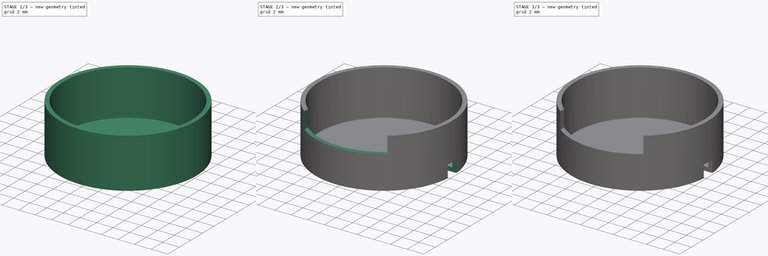
[diagram: build sequence overview — one tinted view per stage of 3, left to right]
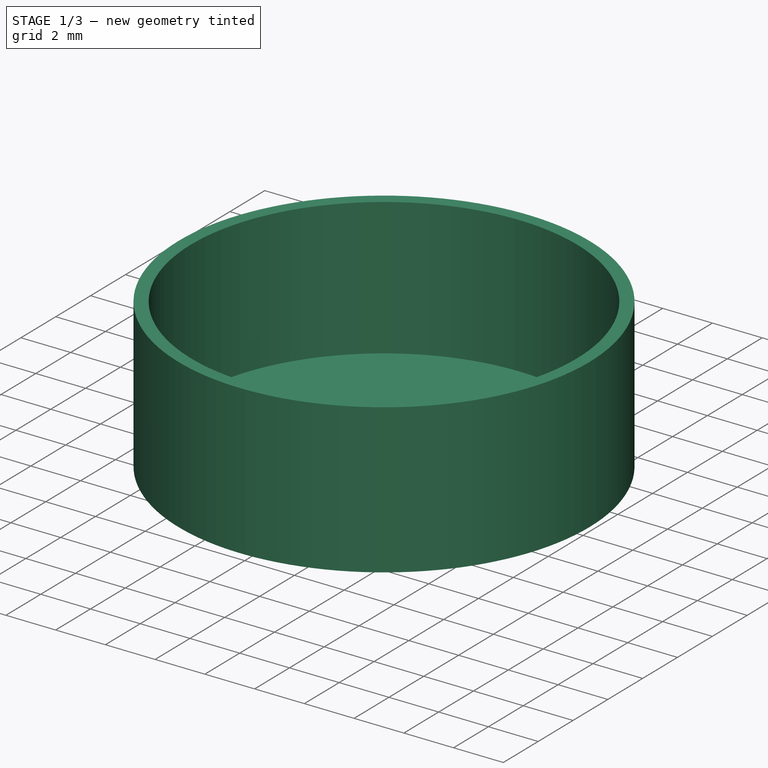
[diagram: stage 1 of 3 — iso view after this stage's code; geometry added in this stage tinted green]
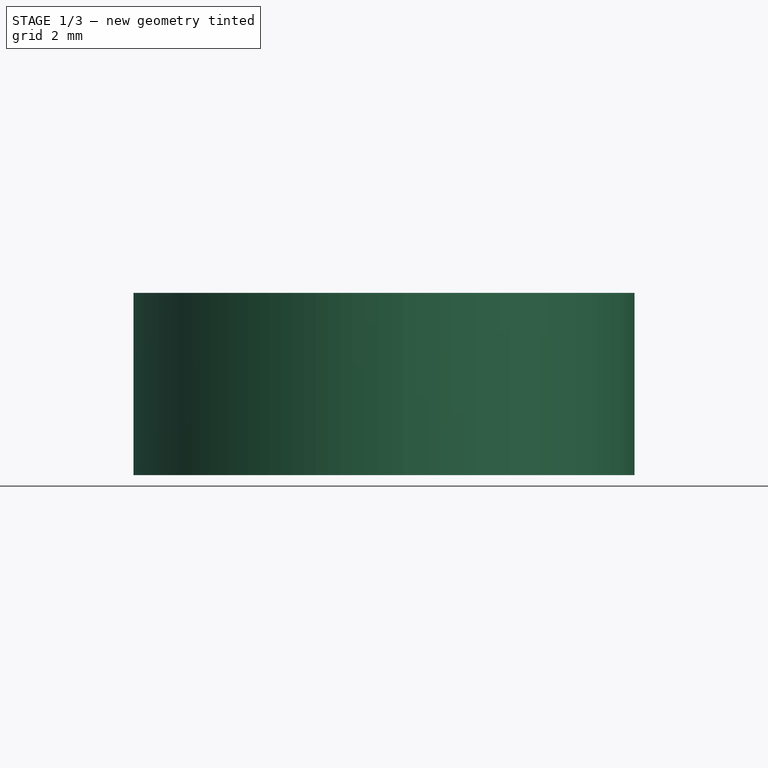
[diagram: stage 1 of 3 — front view after this stage's code; geometry added in this stage tinted green]
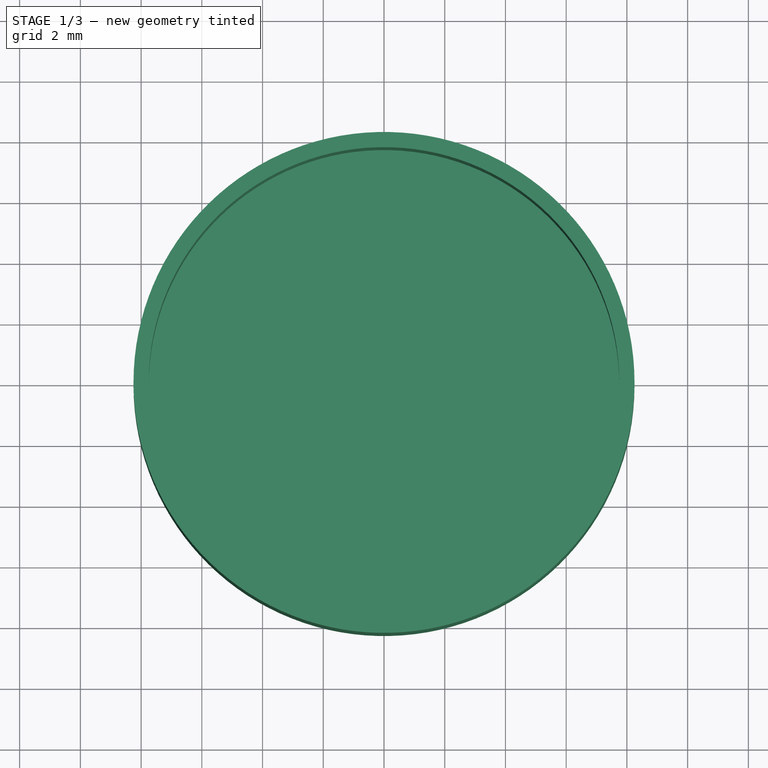
[diagram: stage 1 of 3 — top view after this stage's code; geometry added in this stage tinted green]
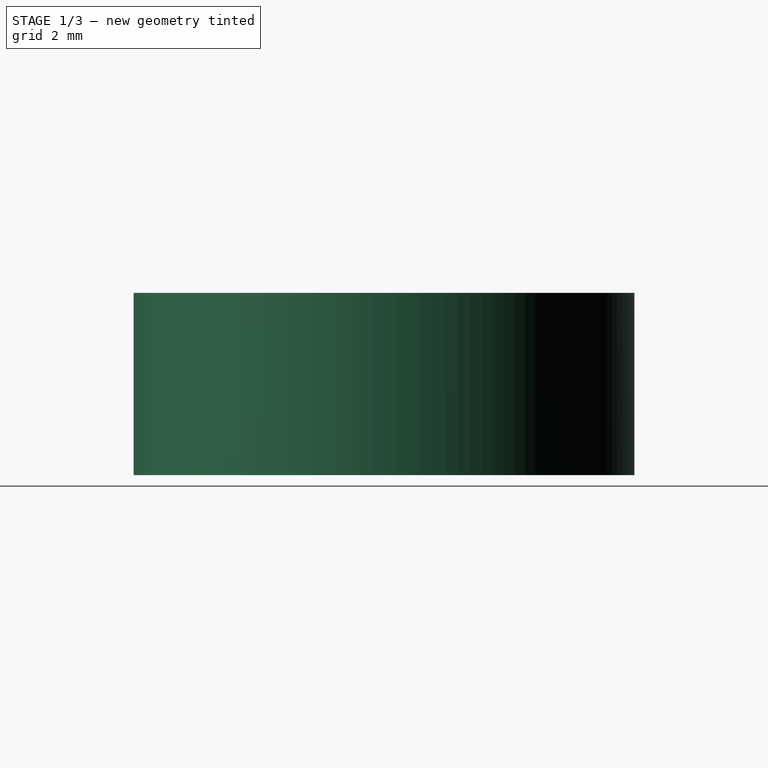
[diagram: stage 1 of 3 — right view after this stage's code; geometry added in this stage tinted green]
FCSTD DOCUMENT  (FreeCAD 0.19R16699 (Git))
Label: RV16AF Series
License: All rights reserved
LicenseURL: http://en.wikipedia.org/wiki/All_rights_reserved
objects: Sketcher::SketchObject×8, PartDesign::Plane×4, PartDesign::ShapeBinder×3, PartDesign::Pad×3, PartDesign::Pocket×2, Image::ImagePlane×1, PartDesign::Thickness×1, PartDesign::Body×1
note: 27 computed .brp shape members not serialized (recipe doc carries the construction recipe); baked Part::Feature solids carry a one-line shape summary decoded from their .brp

FEATURE [Image::ImagePlane] ImagePlane
  Placement = pos=(2.5,-19,0) rot=(0,0,1;0rad)
  XSize = 115
  YSize = 136
FEATURE [Sketcher::SketchObject] Sketch  label="MasterSketch_Housing_XY"
  expr: Constraints[32] = MasterSketch_Housing_XY.Constraints.radius
  expr: Constraints[31] = MasterSketch_Housing_YZ.Constraints.thickness
  expr: Constraints[21] = MasterSketch_Housing_YZ.Constraints.minicutout
  expr: Constraints[19] = MasterSketch_Housing_YZ.Constraints.minicutout
  sketch-geometry (13):
    g0: Circle CenterX=0 CenterY=0 CenterZ=0 NormalX=0 NormalY=0 NormalZ=1 AngleXU=0 Radius=8.25
    g1: LineSegment StartX=-5 StartY=0 StartZ=0 EndX=5 EndY=0 EndZ=0
    g2: LineSegment StartX=5 StartY=0 StartZ=0 EndX=5 EndY=-9.44646 EndZ=0
    g3: LineSegment StartX=5 StartY=-9.44646 StartZ=0 EndX=-5 EndY=-9.44646 EndZ=0
    g4: LineSegment StartX=-5 StartY=-9.44646 StartZ=0 EndX=-5 EndY=0 EndZ=0
    g5: LineSegment StartX=6.75 StartY=0.75 StartZ=0 EndX=8.25 EndY=0.75 EndZ=0
    g6: LineSegment StartX=8.25 StartY=0.75 StartZ=0 EndX=8.25 EndY=-0.75 EndZ=0
    g7: LineSegment StartX=8.25 StartY=-0.75 StartZ=0 EndX=6.75 EndY=-0.75 EndZ=0
    g8: LineSegment StartX=6.75 StartY=-0.75 StartZ=0 EndX=6.75 EndY=0.75 EndZ=0
    g9: LineSegment StartX=6.75 StartY=0.75 StartZ=0 EndX=6.25 EndY=0.75 EndZ=0
    g10: LineSegment StartX=6.25 StartY=0.75 StartZ=0 EndX=6.25 EndY=-0.75 EndZ=0
    g11: LineSegment StartX=6.25 StartY=-0.75 StartZ=0 EndX=6.75 EndY=-0.75 EndZ=0
    g12: LineSegment StartX=6.75 StartY=-0.75 StartZ=0 EndX=6.75 EndY=0.75 EndZ=0
  constraints (33):
    c: Coincident(g0,g-1)
    c: Radius(g0) = 8.25  'radius'
    c: Coincident(g1,g2)
    c: Coincident(g2,g3)
    c: Coincident(g3,g4)
    c: Coincident(g4,g1)
    c: Horizontal(g3)
    c: Vertical(g2)
    c: Vertical(g4)
    c: PointOnObject(g1,g-1)
    c: Symmetric(g1,g1,g-2)
    c: DistanceX(g3,g3) = 10  'cutoutwidth'
    c: Coincident(g5,g6)
    c: Coincident(g6,g7)
    c: Coincident(g7,g8)
    c: Coincident(g8,g5)
    c: Horizontal(g5)
    c: Horizontal(g7)
    c: Vertical(g8)
    c: DistanceX(g5,g5) = 1.5
    c: Symmetric(g5,g6,g-1)
    c: DistanceY(g6,g6) = 1.5
    c: Coincident(g9,g10)
    c: Coincident(g10,g11)
    c: Coincident(g11,g12)
    c: Coincident(g12,g9)
    c: Horizontal(g9)
    c: Horizontal(g11)
    c: Vertical(g10)
    c: Coincident(g9,g5)
    c: Coincident(g11,g7)
    c: DistanceX(g9,g9) = 0.5
    c: DistanceX(g0,g5) = 8.25
FEATURE [Sketcher::SketchObject] Sketch001  label="MasterSketch_Housing_XZ"
  Placement = pos=(0,0,0) rot=(1,0,0;1.5708rad)
  expr: Constraints[20] = MasterSketch_Housing_XY.Constraints.cutoutwidth
  expr: Constraints[8] = MasterSketch_Housing_XY.Constraints.radius * 2
  sketch-geometry (8):
    g0: LineSegment StartX=-8.25 StartY=0 StartZ=0 EndX=8.25 EndY=0 EndZ=0
    g1: LineSegment StartX=8.25 StartY=0 StartZ=0 EndX=8.25 EndY=6 EndZ=0
    g2: LineSegment StartX=8.25 StartY=6 StartZ=0 EndX=-8.25 EndY=6 EndZ=0
    g3: LineSegment StartX=-8.25 StartY=6 StartZ=0 EndX=-8.25 EndY=0 EndZ=0
    g4: LineSegment StartX=-5 StartY=6 StartZ=0 EndX=5 EndY=6 EndZ=0
    g5: LineSegment StartX=5 StartY=6 StartZ=0 EndX=5 EndY=4 EndZ=0
    g6: LineSegment StartX=5 StartY=4 StartZ=0 EndX=-5 EndY=4 EndZ=0
    g7: LineSegment StartX=-5 StartY=4 StartZ=0 EndX=-5 EndY=6 EndZ=0
  constraints (22):
    c: Coincident(g0,g1)
    c: Coincident(g1,g2)
    c: Coincident(g2,g3)
    c: Coincident(g3,g0)
    c: Horizontal(g0)
    c: Vertical(g1)
    c: Vertical(g3)
    c: PointOnObject(g0,g-1)
    c: DistanceX(g2,g2) = 16.5
    c: Symmetric(g1,g2,g-2)
    c: DistanceY(g1,g1) = 6  'height'
    c: Coincident(g4,g5)
    c: Coincident(g5,g6)
    c: Coincident(g6,g7)
    c: Coincident(g7,g4)
    c: Horizontal(g4)
    c: Vertical(g5)
    c: Vertical(g7)
    c: PointOnObject(g4,g2)
    c: Symmetric(g5,g6,g-2)
    c: DistanceX(g6,g6) = 10
    c: DistanceY(g5,g5) = 2  'cutoutdepth'
FEATURE [Sketcher::SketchObject] Sketch002  label="MasterSketch_Housing_YZ"
  Placement = pos=(0,0,0) rot=(0.57735,0.57735,0.57735;2.0944rad)
  sketch-geometry (8):
    g0: LineSegment StartX=-0.75 StartY=0 StartZ=0 EndX=0.75 EndY=0 EndZ=0
    g1: LineSegment StartX=0.75 StartY=0 StartZ=0 EndX=0.75 EndY=1.5 EndZ=0
    g2: LineSegment StartX=0.75 StartY=1.5 StartZ=0 EndX=-0.75 EndY=1.5 EndZ=0
    g3: LineSegment StartX=-0.75 StartY=1.5 StartZ=0 EndX=-0.75 EndY=0 EndZ=0
    g4: LineSegment StartX=-0.75 StartY=1.5 StartZ=0 EndX=0.75 EndY=1.5 EndZ=0
    g5: LineSegment StartX=0.75 StartY=1.5 StartZ=0 EndX=0.75 EndY=2 EndZ=0
    g6: LineSegment StartX=0.75 StartY=2 StartZ=0 EndX=-0.75 EndY=2 EndZ=0
    g7: LineSegment StartX=-0.75 StartY=2 StartZ=0 EndX=-0.75 EndY=1.5 EndZ=0
  constraints (21):
    c: Coincident(g0,g1)
    c: Coincident(g1,g2)
    c: Coincident(g2,g3)
    c: Coincident(g3,g0)
    c: Horizontal(g0)
    c: Vertical(g1)
    c: Vertical(g3)
    c: PointOnObject(g0,g-1)
    c: Equal(g1,g2)
    c: DistanceX(g2,g2) = 1.5  'minicutout'
    c: Symmetric(g1,g2,g-2)
    c: Coincident(g4,g5)
    c: Coincident(g5,g6)
    c: Coincident(g6,g7)
    c: Coincident(g7,g4)
    c: Horizontal(g6)
    c: Vertical(g5)
    c: Vertical(g7)
    c: Coincident(g4,g2)
    c: Coincident(g4,g1)
    c: DistanceY(g5,g5) = 0.5  'thickness'
FEATURE [PartDesign::ShapeBinder] ShapeBinder
  Support = -> [Sketch]
  TraceSupport = false
FEATURE [Sketcher::SketchObject] Sketch003
  ExternalGeometry = -> [ShapeBinder]
  MapMode = 5
  Support = -> [XY_Plane]
  sketch-geometry (1):
    g0: Circle CenterX=0 CenterY=0 CenterZ=0 NormalX=0 NormalY=0 NormalZ=1 AngleXU=0 Radius=8.25
  constraints (2):
    c: Coincident(g0,g-1)
    c: Equal(g0,g-3)
FEATURE [PartDesign::Pad] Pad
  Length = 6
  Length2 = 100
  Profile = -> Sketch003
  Type = 0
  expr: Length = MasterSketch_Housing_XZ.Constraints.height
FEATURE [PartDesign::Thickness] Thickness
  Base = -> Pad [Face3]
  BaseFeature = -> Pad
  Join = 0
  Mode = 0
  Reversed = true
  Value = 0.5
  expr: Value = MasterSketch_Housing_YZ.Constraints.thickness
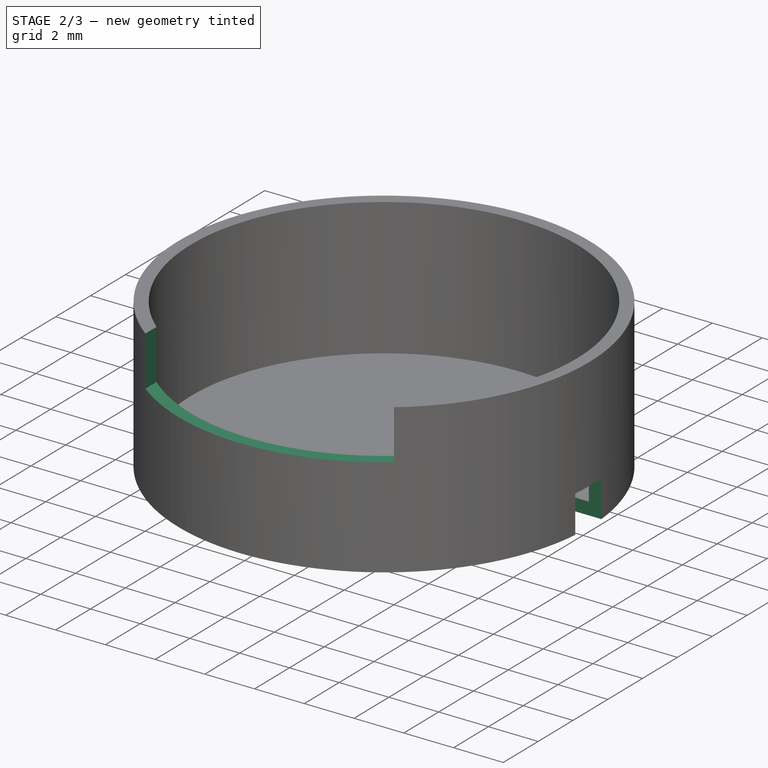
[diagram: stage 2 of 3 — iso view after this stage's code; geometry added in this stage tinted green]
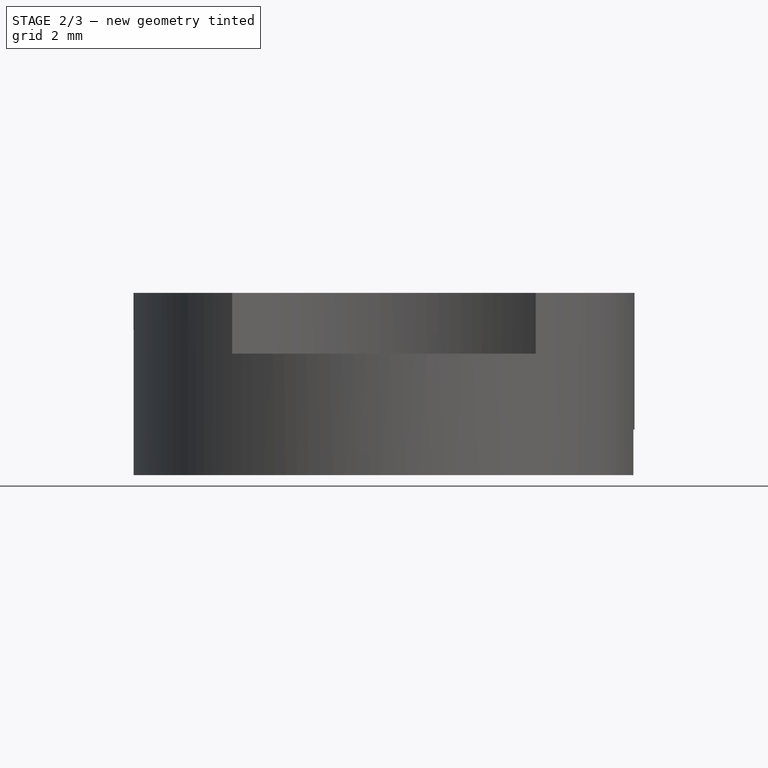
[diagram: stage 2 of 3 — front view after this stage's code; geometry added in this stage tinted green]
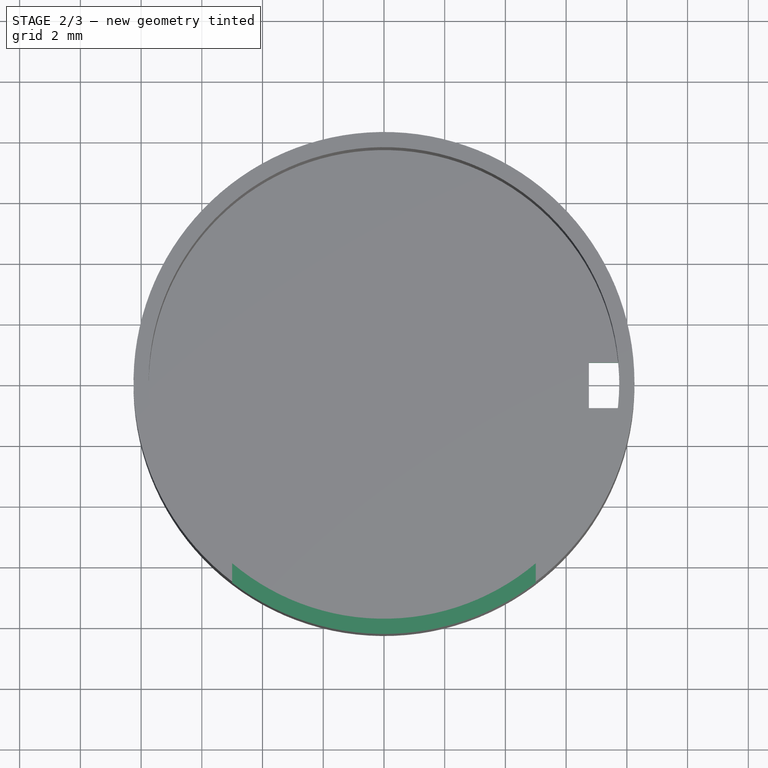
[diagram: stage 2 of 3 — top view after this stage's code; geometry added in this stage tinted green]
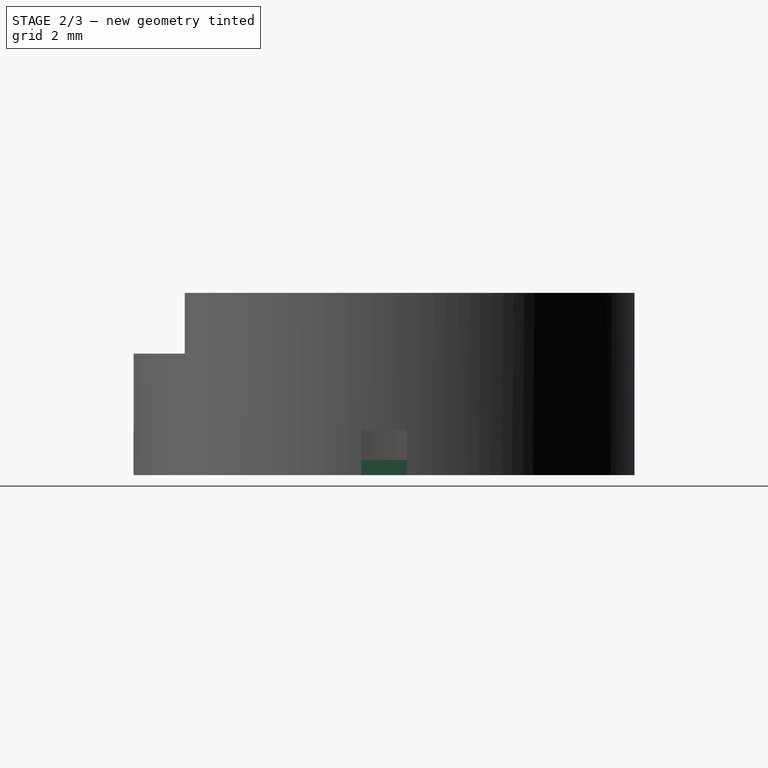
[diagram: stage 2 of 3 — right view after this stage's code; geometry added in this stage tinted green]
FEATURE [PartDesign::Plane] DatumPlane
  AttachmentOffset = pos=(0,0,6) rot=(0,0,1;0rad)
  Length = 24
  MapMode = 5
  Placement = pos=(0,0,6) rot=(0,0,1;0rad)
  ResizeMode = 0
  Support = -> [XY_Plane]
  Width = 24
  expr: AttachmentOffset.Base.z = MasterSketch_Housing_XZ.Constraints.height
FEATURE [Sketcher::SketchObject] Sketch004
  ExternalGeometry = -> [ShapeBinder]
  MapMode = 5
  Placement = pos=(0,0,6) rot=(0,0,1;0rad)
  Support = -> [DatumPlane]
  sketch-geometry (4):
    g0: LineSegment StartX=-5 StartY=0 StartZ=0 EndX=5 EndY=0 EndZ=0
    g1: LineSegment StartX=5 StartY=0 StartZ=0 EndX=5 EndY=-9.44646 EndZ=0
    g2: LineSegment StartX=5 StartY=-9.44646 StartZ=0 EndX=-5 EndY=-9.44646 EndZ=0
    g3: LineSegment StartX=-5 StartY=-9.44646 StartZ=0 EndX=-5 EndY=0 EndZ=0
  constraints (10):
    c: Coincident(g0,g1)
    c: Coincident(g1,g2)
    c: Coincident(g2,g3)
    c: Coincident(g3,g0)
    c: Horizontal(g0)
    c: Horizontal(g2)
    c: Vertical(g1)
    c: Vertical(g3)
    c: Coincident(g0,g-3)
    c: Coincident(g1,g-4)
FEATURE [PartDesign::Pocket] Pocket
  BaseFeature = -> Thickness
  Length = 2
  Length2 = 100
  Profile = -> Sketch004
  Type = 0
  expr: Length = MasterSketch_Housing_XZ.Constraints.cutoutdepth
FEATURE [PartDesign::Plane] DatumPlane001
  AttachmentOffset = pos=(0,0,8.25) rot=(0,0,1;0rad)
  Length = 24
  MapMode = 5
  Placement = pos=(8.25,-1.8e-15,1.8e-15) rot=(0.57735,0.57735,0.57735;2.0944rad)
  ResizeMode = 0
  Support = -> [YZ_Plane]
  Width = 24
  expr: AttachmentOffset.Base.z = MasterSketch_Housing_XY.Constraints.radius
FEATURE [PartDesign::ShapeBinder] ShapeBinder001
  Placement = pos=(0,0,0) rot=(0.57735,0.57735,0.57735;2.0944rad)
  Support = -> [Sketch002]
  TraceSupport = false
FEATURE [Sketcher::SketchObject] Sketch005
  ExternalGeometry = -> [ShapeBinder001]
  MapMode = 5
  Placement = pos=(8.25,-1.8e-15,1.8e-15) rot=(0.57735,0.57735,0.57735;2.0944rad)
  Support = -> [DatumPlane001]
  sketch-geometry (4):
    g0: LineSegment StartX=-0.75 StartY=1.5 StartZ=0 EndX=0.75 EndY=1.5 EndZ=0
    g1: LineSegment StartX=0.75 StartY=1.5 StartZ=0 EndX=0.75 EndY=0 EndZ=0
    g2: LineSegment StartX=0.75 StartY=0 StartZ=0 EndX=-0.75 EndY=0 EndZ=0
    g3: LineSegment StartX=-0.75 StartY=0 StartZ=0 EndX=-0.75 EndY=1.5 EndZ=0
  constraints (10):
    c: Coincident(g0,g1)
    c: Coincident(g1,g2)
    c: Coincident(g2,g3)
    c: Coincident(g3,g0)
    c: Horizontal(g0)
    c: Horizontal(g2)
    c: Vertical(g1)
    c: Vertical(g3)
    c: Coincident(g0,g-5)
    c: Coincident(g1,g-4)
FEATURE [PartDesign::Pocket] Pocket001
  BaseFeature = -> Pocket
  Length = 1.5
  Length2 = 100
  Profile = -> Sketch005
  Type = 0
  expr: Length = MasterSketch_Housing_YZ.Constraints.minicutout
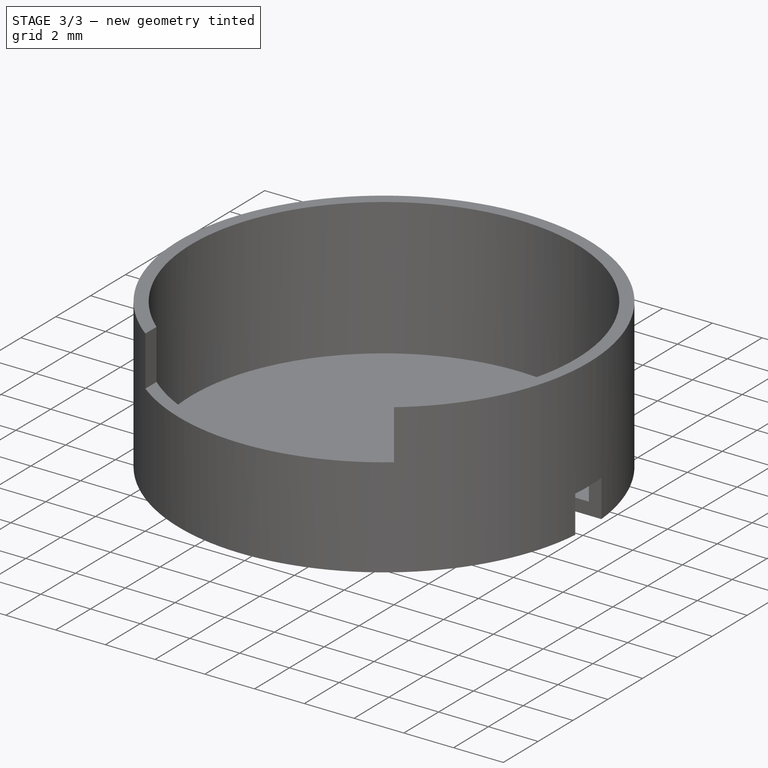
[diagram: stage 3 of 3 — iso view after this stage's code; geometry added in this stage tinted green]
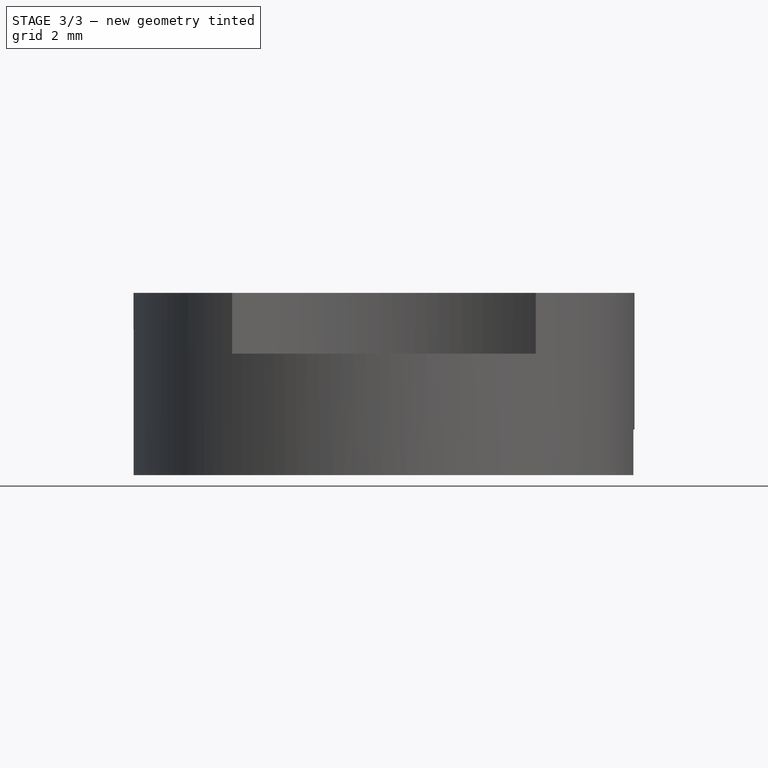
[diagram: stage 3 of 3 — front view after this stage's code; geometry added in this stage tinted green]
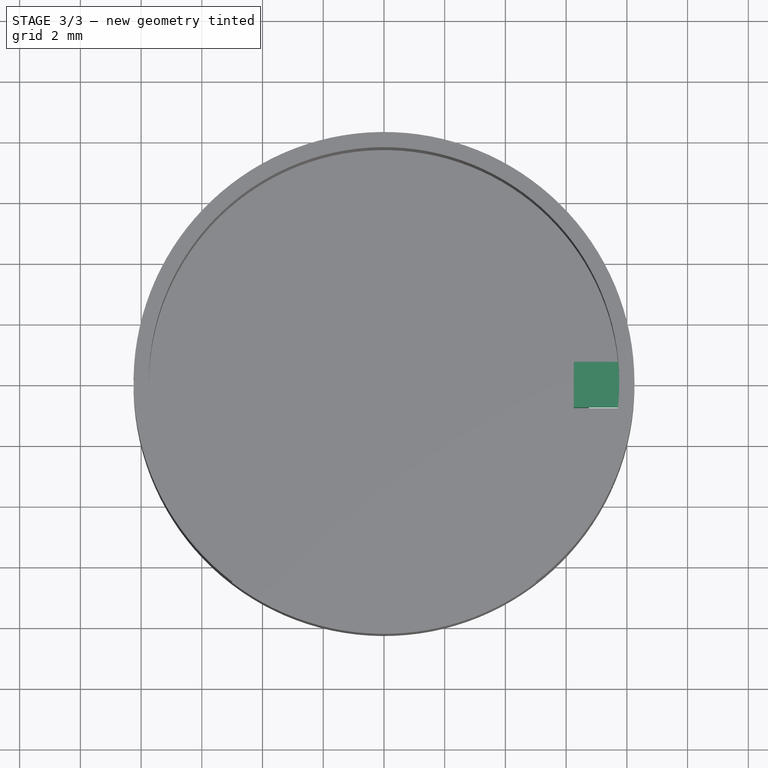
[diagram: stage 3 of 3 — top view after this stage's code; geometry added in this stage tinted green]
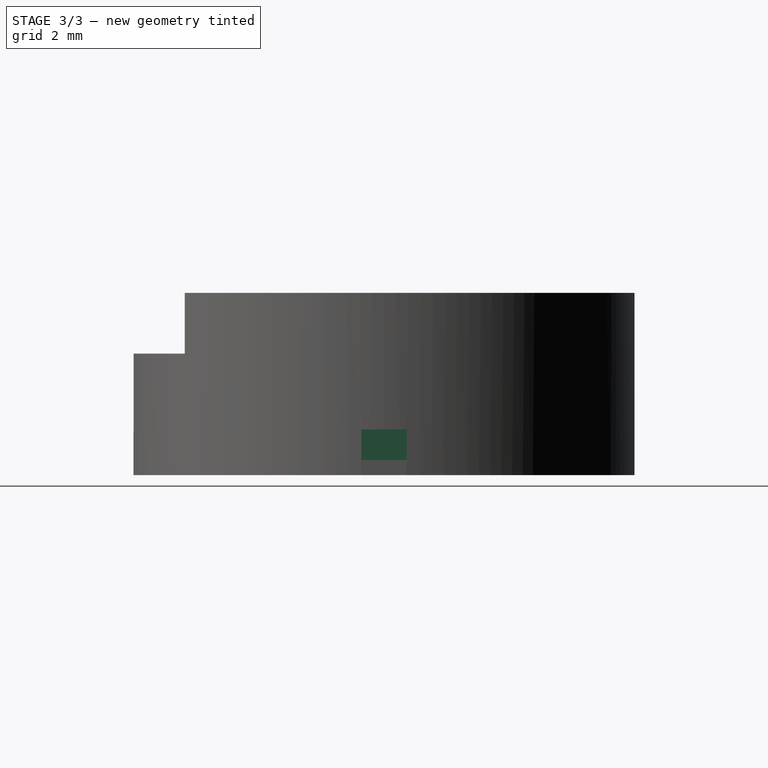
[diagram: stage 3 of 3 — right view after this stage's code; geometry added in this stage tinted green]
FEATURE [PartDesign::ShapeBinder] ShapeBinder002
  Support = -> [Sketch]
  TraceSupport = false
FEATURE [PartDesign::Plane] DatumPlane002
  AttachmentOffset = pos=(0,0,0.5) rot=(0,0,1;0rad)
  Length = 24
  MapMode = 5
  Placement = pos=(0,0,0.5) rot=(0,0,1;0rad)
  ResizeMode = 0
  Support = -> [XY_Plane]
  Width = 24
  expr: AttachmentOffset.Base.z = MasterSketch_Housing_YZ.Constraints.thickness
FEATURE [Sketcher::SketchObject] Sketch006
  ExternalGeometry = -> [ShapeBinder002]
  MapMode = 5
  Placement = pos=(0,0,0.5) rot=(0,0,1;0rad)
  Support = -> [DatumPlane002]
  sketch-geometry (4):
    g0: LineSegment StartX=6.75 StartY=-0.75 StartZ=0 EndX=6.25 EndY=-0.75 EndZ=0
    g1: LineSegment StartX=6.25 StartY=-0.75 StartZ=0 EndX=6.25 EndY=0.75 EndZ=0
    g2: LineSegment StartX=6.25 StartY=0.75 StartZ=0 EndX=6.75 EndY=0.75 EndZ=0
    g3: LineSegment StartX=6.75 StartY=0.75 StartZ=0 EndX=6.75 EndY=-0.75 EndZ=0
  constraints (10):
    c: Coincident(g0,g1)
    c: Coincident(g1,g2)
    c: Coincident(g2,g3)
    c: Coincident(g3,g0)
    c: Horizontal(g0)
    c: Horizontal(g2)
    c: Vertical(g1)
    c: Vertical(g3)
    c: Coincident(g0,g-4)
    c: Coincident(g1,g-3)
FEATURE [PartDesign::Pad] Pad001
  BaseFeature = -> Pocket001
  Length = 1.5
  Length2 = 100
  Profile = -> Sketch006
  Type = 0
  expr: Length = MasterSketch_Housing_YZ.Constraints.minicutout
FEATURE [PartDesign::Plane] DatumPlane003
  AttachmentOffset = pos=(0,0,6.25) rot=(0,0,1;0rad)
  Length = 24
  MapMode = 5
  Placement = pos=(6.25,-1.4e-15,1.4e-15) rot=(0.57735,0.57735,0.57735;2.0944rad)
  ResizeMode = 0
  Support = -> [YZ_Plane]
  Width = 24
  expr: AttachmentOffset.Base.z = MasterSketch_Housing_XY.Constraints.radius - MasterSketch_Housing_YZ.Constraints.minicutout - MasterSketch_Housing_YZ.Constraints.thickness
FEATURE [Sketcher::SketchObject] Sketch007
  ExternalGeometry = -> [ShapeBinder001]
  MapMode = 5
  Placement = pos=(6.25,-1.4e-15,1.4e-15) rot=(0.57735,0.57735,0.57735;2.0944rad)
  Support = -> [DatumPlane003]
  sketch-geometry (4):
    g0: LineSegment StartX=-0.75 StartY=2 StartZ=0 EndX=0.75 EndY=2 EndZ=0
    g1: LineSegment StartX=0.75 StartY=2 StartZ=0 EndX=0.75 EndY=1.5 EndZ=0
    g2: LineSegment StartX=0.75 StartY=1.5 StartZ=0 EndX=-0.75 EndY=1.5 EndZ=0
    g3: LineSegment StartX=-0.75 StartY=1.5 StartZ=0 EndX=-0.75 EndY=2 EndZ=0
  constraints (10):
    c: Coincident(g0,g1)
    c: Coincident(g1,g2)
    c: Coincident(g2,g3)
    c: Coincident(g3,g0)
    c: Horizontal(g0)
    c: Horizontal(g2)
    c: Vertical(g1)
    c: Vertical(g3)
    c: Coincident(g0,g-3)
    c: Coincident(g1,g-4)
FEATURE [PartDesign::Pad] Pad002
  BaseFeature = -> Pad001
  Length = 1.75
  Length2 = 100
  Profile = -> Sketch007
  Type = 0
  expr: Length = MasterSketch_Housing_YZ.Constraints.minicutout + 0.5 * MasterSketch_Housing_YZ.Constraints.thickness
FEATURE [PartDesign::Body] Body  label="Housing"
  Group = -> [ShapeBinder,Sketch003,Pad,Thickness,DatumPlane,Sketch004,Pocket,DatumPlane001,ShapeBinder001,Sketch005,Pocket001,ShapeBinder002,DatumPlane002,Sketch006,Pad001,DatumPlane003,Sketch007,Pad002]
  Origin = -> Origin
  Tip = -> Pad002
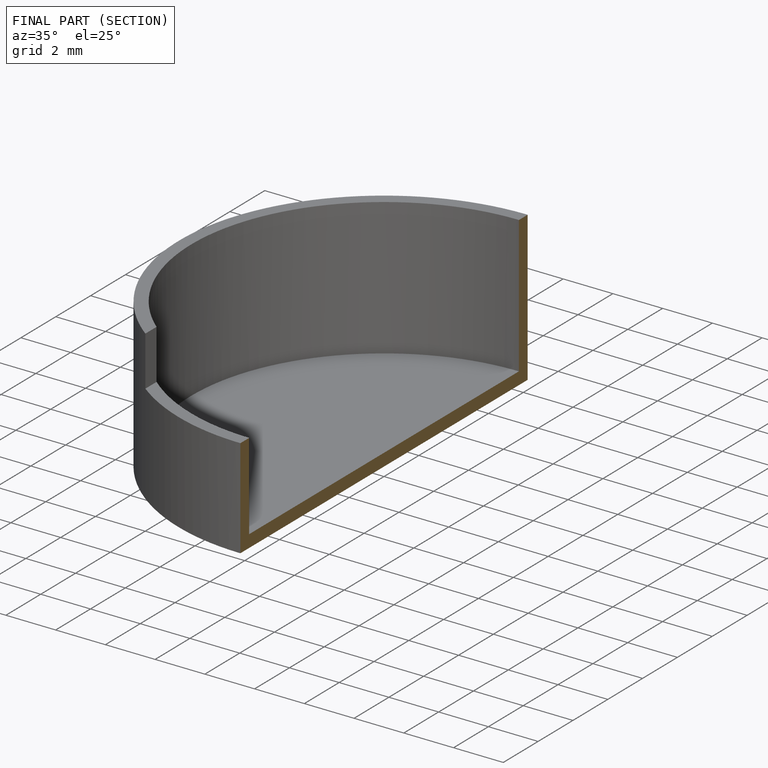
[diagram: finished part — half-section view (interior)]
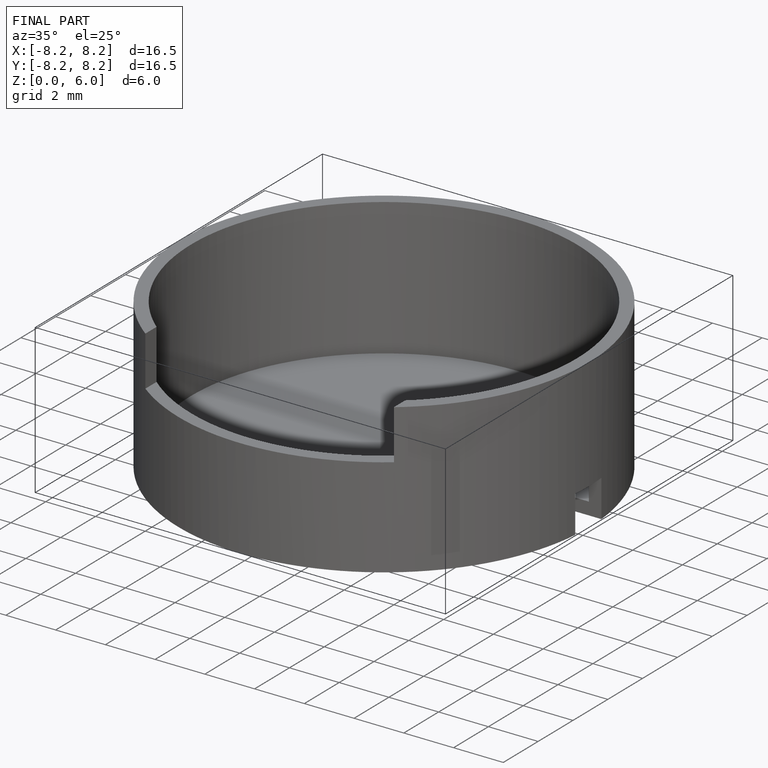
[diagram: finished part — iso view with bounding-box wireframe]
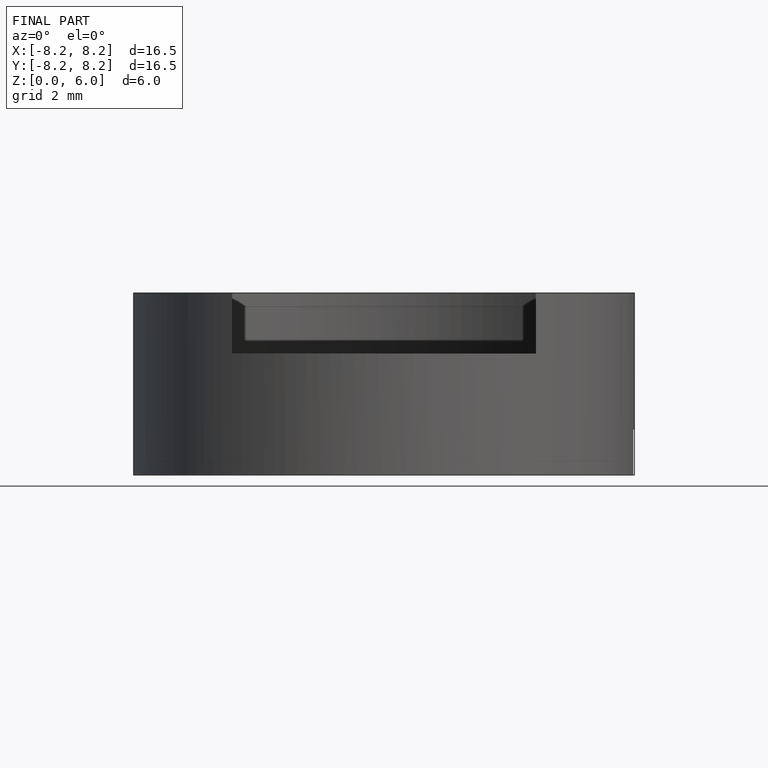
[diagram: finished part — front view with bounding-box wireframe]
